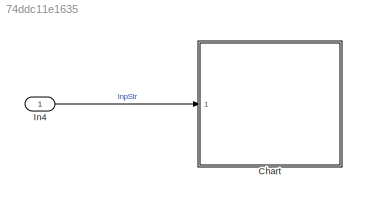
MODEL slx_74ddc11e1635
KIND model
CONFIG AbsTol = auto
CONFIG EnableMultiTasking = off
CONFIG FixedStep = auto
CONFIG MaxStep = auto
CONFIG MinStep = auto
CONFIG RelTol = 1e-3
CONFIG SampleTimeConstraint = Unconstrained
CONFIG Solver = VariableStepAuto
CONFIG SolverName = VariableStepAuto
CONFIG StartTime = 0.0
CONFIG StopTime = 10.0
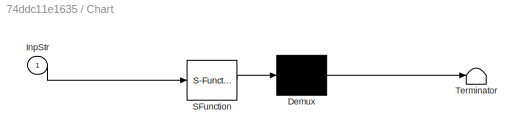
BLOCK [SubSystem] Chart
  ErrorFcn = Stateflow.Translate.translate
  PermitHierarchicalResolution = ExplicitOnly
  Ports = [1]
  RequestExecContextInheritance = off
  SFBlockType = Chart
  TreatAsAtomicUnit = on
BLOCK [Demux] Chart/ Demux 
  Outputs = 1
  Ports = [1, 1]
BLOCK [S-Function] Chart/ SFunction 
  EnableBusSupport = on
  FunctionName = sf_sfun
  PortCounts = [1 1]
  Ports = [1, 1]
  SFcnIsStateOwnerBlock = off
  SFunctionDeploymentMode = off
  Tag = Stateflow S-Function UseStructArrayInSF 3
BLOCK [Terminator] Chart/ Terminator 
BLOCK [Inport] Chart/InpStr
  IconDisplay = Port number
BLOCK [Inport] In4
  BusOutputAsStruct = on
  IconDisplay = Port number
  OutDataTypeStr = Bus: TempBus
LINE In4:1 -> Chart:1
CHART Chart states=2 transitions=2
  STATE_LABEL 'StrRet=StructArrAccess(StrArrInp, Index)'
  STATE_LABEL 'SCRIPT:\nfunction StrRet=StructArrAccess(StrArrInp, Index)\nStrRet = StrArrInp(Index);\nend\n \n'
  STATE_LABEL 'InitState\nen: \nx=StructArrAccess(InpStr,1);'
